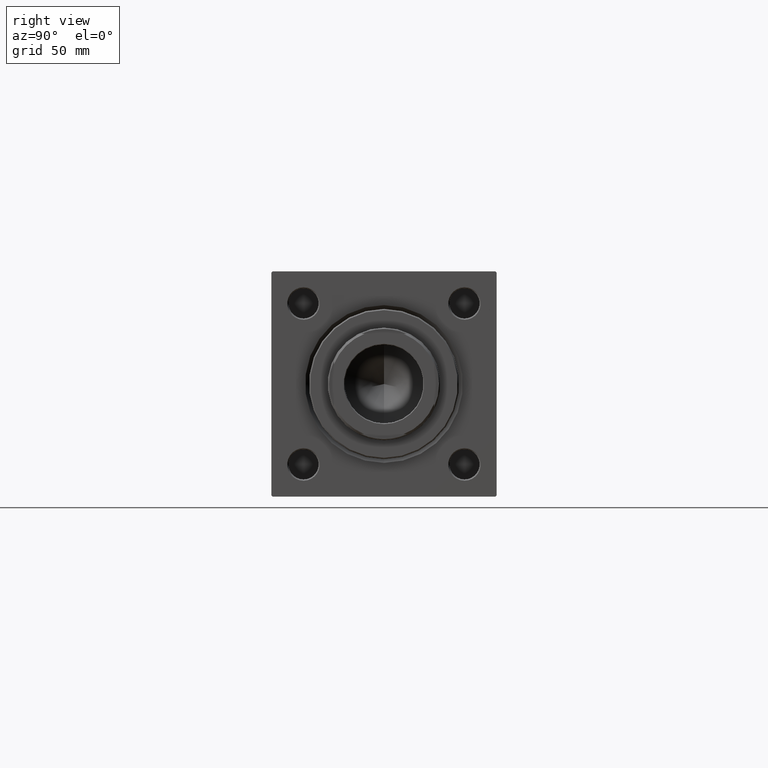
[diagram: clean part render]
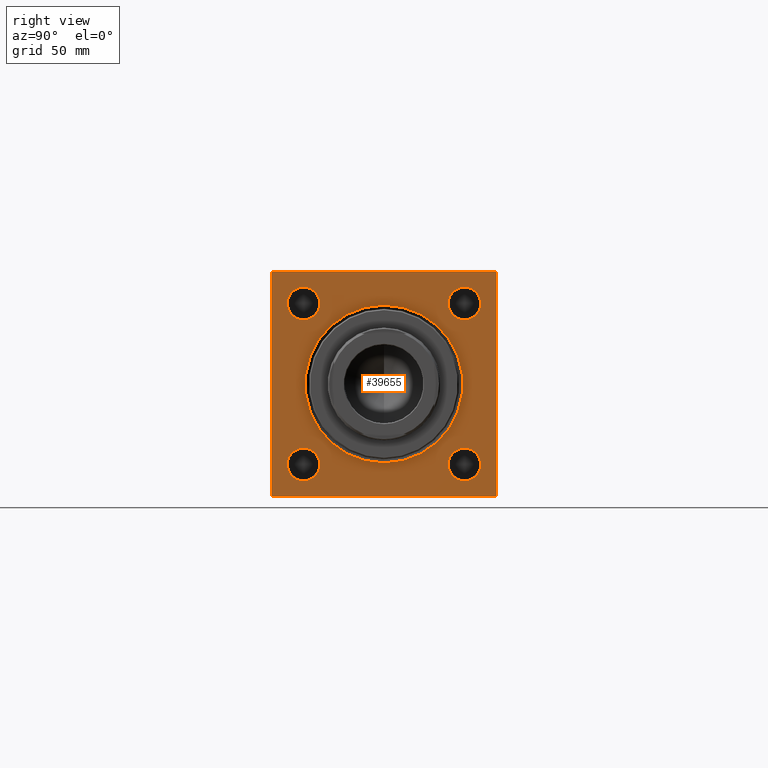
[diagram: same view with one face highlighted and labeled with its STEP entity id]
A machine part, right view. The second image highlights one B-rep face of the part: STEP entity #39655.
In plain terms, the highlighted planar face has unit normal (-1, 0, 0).
Its self-contained STEP definition (entity closure, byte-faithful):
#113 = ORIENTED_EDGE ( 'NONE', *, *, #33554, .F. ) ;
#511 = AXIS2_PLACEMENT_3D ( 'NONE', #24384, #16039, #831 ) ;
#660 = CIRCLE ( 'NONE', #20085, 31.49999999999997158 ) ;
#700 = CIRCLE ( 'NONE', #42023, 31.49999999999997158 ) ;
#831 = DIRECTION ( 'NONE',  ( 0.000000000000000000, 0.000000000000000000, 1.000000000000000000 ) ) ;
#940 = CARTESIAN_POINT ( 'NONE',  ( 215.0000000000000000, 45.00000000000000000, 44.50000000000001421 ) ) ;
#1175 = VECTOR ( 'NONE', #43273, 1000.000000000000114 ) ;
#1537 = EDGE_CURVE ( 'NONE', #48639, #20991, #700, .T. ) ;
#1698 = AXIS2_PLACEMENT_3D ( 'NONE', #31020, #26719, #31267 ) ;
#1708 = DIRECTION ( 'NONE',  ( 0.000000000000000000, 0.000000000000000000, 1.000000000000000000 ) ) ;
#2242 = LINE ( 'NONE', #44833, #21068 ) ;
#2457 = EDGE_LOOP ( 'NONE', ( #25732, #44193 ) ) ;
#2843 = CARTESIAN_POINT ( 'NONE',  ( 215.0000000000000000, 0.000000000000000000, 0.000000000000000000 ) ) ;
#3144 = ORIENTED_EDGE ( 'NONE', *, *, #8121, .T. ) ;
#3922 = CIRCLE ( 'NONE', #21700, 6.499999999999977796 ) ;
#4381 = CARTESIAN_POINT ( 'NONE',  ( 215.0000000000000000, -44.49999999999997158, 45.00000000000000000 ) ) ;
#5157 = EDGE_CURVE ( 'NONE', #26328, #27036, #2242, .T. ) ;
#5237 = DIRECTION ( 'NONE',  ( 0.000000000000000000, 0.000000000000000000, -1.000000000000000000 ) ) ;
#5719 = LINE ( 'NONE', #32330, #31959 ) ;
#6133 = ORIENTED_EDGE ( 'NONE', *, *, #20011, .T. ) ;
#6137 = VERTEX_POINT ( 'NONE', #21752 ) ;
#6217 = CARTESIAN_POINT ( 'NONE',  ( 215.0000000000000000, 0.000000000000000000, -31.49999999999997158 ) ) ;
#6298 = DIRECTION ( 'NONE',  ( 0.000000000000000000, 0.000000000000000000, -1.000000000000000000 ) ) ;
#6393 = FACE_BOUND ( 'NONE', #2457, .T. ) ;
#6645 = CARTESIAN_POINT ( 'NONE',  ( 215.0000000000000000, 0.000000000000000000, 0.000000000000000000 ) ) ;
#6890 = EDGE_CURVE ( 'NONE', #7713, #28802, #9780, .T. ) ;
#7222 = AXIS2_PLACEMENT_3D ( 'NONE', #46232, #7705, #23153 ) ;
#7376 = AXIS2_PLACEMENT_3D ( 'NONE', #13602, #36440, #1708 ) ;
#7485 = LINE ( 'NONE', #8663, #31298 ) ;
#7560 = ORIENTED_EDGE ( 'NONE', *, *, #34576, .T. ) ;
#7586 = ORIENTED_EDGE ( 'NONE', *, *, #32189, .T. ) ;
#7705 = DIRECTION ( 'NONE',  ( -1.000000000000000000, 0.000000000000000000, -0.000000000000000000 ) ) ;
#7713 = VERTEX_POINT ( 'NONE', #11461 ) ;
#8003 = ORIENTED_EDGE ( 'NONE', *, *, #5157, .F. ) ;
#8121 = EDGE_CURVE ( 'NONE', #48667, #33597, #27709, .T. ) ;
#8231 = DIRECTION ( 'NONE',  ( -1.000000000000000000, 0.000000000000000000, -0.000000000000000000 ) ) ;
#8296 = VERTEX_POINT ( 'NONE', #33252 ) ;
#8663 = CARTESIAN_POINT ( 'NONE',  ( 215.0000000000000000, 45.00000000000000000, -44.49999999999998579 ) ) ;
#8726 = DIRECTION ( 'NONE',  ( -1.000000000000000000, 0.000000000000000000, -0.000000000000000000 ) ) ;
#8937 = CARTESIAN_POINT ( 'NONE',  ( 215.0000000000000000, 32.14999999999999147, 25.65000000000001990 ) ) ;
#9174 = LINE ( 'NONE', #12486, #17674 ) ;
#9780 = CIRCLE ( 'NONE', #7376, 6.499999999999977796 ) ;
#9952 = FACE_BOUND ( 'NONE', #44558, .T. ) ;
#10253 = ORIENTED_EDGE ( 'NONE', *, *, #32484, .T. ) ;
#11149 = CARTESIAN_POINT ( 'NONE',  ( 215.0000000000000000, -45.00000000000000000, -44.49999999999997158 ) ) ;
#11461 = CARTESIAN_POINT ( 'NONE',  ( 215.0000000000000000, -32.14999999999999858, 25.65000000000001990 ) ) ;
#11852 = CARTESIAN_POINT ( 'NONE',  ( 215.0000000000000000, -45.00000000000000000, 45.00000000000000000 ) ) ;
#12027 = CARTESIAN_POINT ( 'NONE',  ( 215.0000000000000000, 45.00000000000000000, 45.00000000000001421 ) ) ;
#12368 = EDGE_CURVE ( 'NONE', #24502, #6137, #34937, .T. ) ;
#12486 = CARTESIAN_POINT ( 'NONE',  ( 215.0000000000000000, 45.00000000000000000, -44.99999999999998579 ) ) ;
#12520 = DIRECTION ( 'NONE',  ( 0.000000000000000000, -1.000000000000000000, -1.541976423090495387E-16 ) ) ;
#12692 = EDGE_LOOP ( 'NONE', ( #7560, #46985 ) ) ;
#13099 = AXIS2_PLACEMENT_3D ( 'NONE', #20126, #8726, #35110 ) ;
#13167 = DIRECTION ( 'NONE',  ( 0.000000000000000000, 0.000000000000000000, 1.000000000000000000 ) ) ;
#13174 = VERTEX_POINT ( 'NONE', #35844 ) ;
#13562 = CARTESIAN_POINT ( 'NONE',  ( 215.0000000000000000, 44.50000000000000000, 45.00000000000001421 ) ) ;
#13602 = CARTESIAN_POINT ( 'NONE',  ( 215.0000000000000000, -32.14999999999999858, 32.14999999999999858 ) ) ;
#14187 = CARTESIAN_POINT ( 'NONE',  ( 215.0000000000000000, 32.14999999999999147, -38.64999999999997726 ) ) ;
#15496 = AXIS2_PLACEMENT_3D ( 'NONE', #32430, #36247, #13167 ) ;
#16039 = DIRECTION ( 'NONE',  ( -1.000000000000000000, 0.000000000000000000, -0.000000000000000000 ) ) ;
#16775 = DIRECTION ( 'NONE',  ( 0.000000000000000000, -1.000000000000000000, -1.541976423090495387E-16 ) ) ;
#17674 = VECTOR ( 'NONE', #16775, 1000.000000000000000 ) ;
#17954 = VERTEX_POINT ( 'NONE', #11149 ) ;
#18105 = DIRECTION ( 'NONE',  ( 0.000000000000000000, 0.000000000000000000, 1.000000000000000000 ) ) ;
#18176 = VECTOR ( 'NONE', #5237, 1000.000000000000000 ) ;
#18180 = EDGE_CURVE ( 'NONE', #26328, #48667, #42775, .T. ) ;
#18276 = DIRECTION ( 'NONE',  ( 0.000000000000000000, 0.000000000000000000, 1.000000000000000000 ) ) ;
#19105 = EDGE_CURVE ( 'NONE', #33597, #13174, #5719, .T. ) ;
#19827 = VECTOR ( 'NONE', #32279, 1000.000000000000114 ) ;
#20011 = EDGE_CURVE ( 'NONE', #13174, #17954, #39461, .T. ) ;
#20059 = VERTEX_POINT ( 'NONE', #39710 ) ;
#20085 = AXIS2_PLACEMENT_3D ( 'NONE', #25461, #22176, #18105 ) ;
#20126 = CARTESIAN_POINT ( 'NONE',  ( 215.0000000000000000, 32.14999999999999147, -32.14999999999999858 ) ) ;
#20524 = EDGE_CURVE ( 'NONE', #17954, #20059, #44700, .T. ) ;
#20991 = VERTEX_POINT ( 'NONE', #22499 ) ;
#21068 = VECTOR ( 'NONE', #6298, 1000.000000000000000 ) ;
#21117 = CARTESIAN_POINT ( 'NONE',  ( 215.0000000000000000, -44.50000000000000000, -45.00000000000000000 ) ) ;
#21700 = AXIS2_PLACEMENT_3D ( 'NONE', #46756, #8231, #39405 ) ;
#21752 = CARTESIAN_POINT ( 'NONE',  ( 215.0000000000000000, -32.14999999999999858, -38.64999999999997726 ) ) ;
#21805 = AXIS2_PLACEMENT_3D ( 'NONE', #2843, #30213, #29439 ) ;
#21846 = FACE_BOUND ( 'NONE', #37782, .T. ) ;
#22170 = CARTESIAN_POINT ( 'NONE',  ( 215.0000000000000000, -32.14999999999999858, 38.64999999999997726 ) ) ;
#22176 = DIRECTION ( 'NONE',  ( -1.000000000000000000, 0.000000000000000000, -0.000000000000000000 ) ) ;
#22499 = CARTESIAN_POINT ( 'NONE',  ( 215.0000000000000000, 3.857637417314158745E-15, 31.49999999999997158 ) ) ;
#22868 = ORIENTED_EDGE ( 'NONE', *, *, #18180, .T. ) ;
#22933 = DIRECTION ( 'NONE',  ( -0.000000000000000000, 0.7071067811865474617, 0.7071067811865474617 ) ) ;
#23153 = DIRECTION ( 'NONE',  ( 0.000000000000000000, 0.000000000000000000, 1.000000000000000000 ) ) ;
#23478 = CARTESIAN_POINT ( 'NONE',  ( 215.0000000000000000, 44.50000000000000000, 45.00000000000001421 ) ) ;
#23597 = VECTOR ( 'NONE', #12520, 1000.000000000000000 ) ;
#24200 = CIRCLE ( 'NONE', #7222, 6.499999999999977796 ) ;
#24384 = CARTESIAN_POINT ( 'NONE',  ( 215.0000000000000000, 32.14999999999999147, -32.14999999999999858 ) ) ;
#24502 = VERTEX_POINT ( 'NONE', #35639 ) ;
#24691 = EDGE_CURVE ( 'NONE', #8296, #26694, #37740, .T. ) ;
#24719 = DIRECTION ( 'NONE',  ( -0.000000000000000000, -0.7071067811865474617, -0.7071067811865474617 ) ) ;
#25395 = FACE_OUTER_BOUND ( 'NONE', #31669, .T. ) ;
#25461 = CARTESIAN_POINT ( 'NONE',  ( 215.0000000000000000, 0.000000000000000000, 0.000000000000000000 ) ) ;
#25732 = ORIENTED_EDGE ( 'NONE', *, *, #44794, .T. ) ;
#25980 = VERTEX_POINT ( 'NONE', #33682 ) ;
#26156 = VERTEX_POINT ( 'NONE', #49633 ) ;
#26328 = VERTEX_POINT ( 'NONE', #940 ) ;
#26694 = VERTEX_POINT ( 'NONE', #14187 ) ;
#26719 = DIRECTION ( 'NONE',  ( -1.000000000000000000, 0.000000000000000000, -0.000000000000000000 ) ) ;
#27036 = VERTEX_POINT ( 'NONE', #35988 ) ;
#27709 = LINE ( 'NONE', #12027, #23597 ) ;
#28802 = VERTEX_POINT ( 'NONE', #22170 ) ;
#28913 = EDGE_CURVE ( 'NONE', #26156, #27036, #7485, .T. ) ;
#28967 = CIRCLE ( 'NONE', #33837, 6.499999999999977796 ) ;
#29194 = FACE_BOUND ( 'NONE', #12692, .T. ) ;
#29439 = DIRECTION ( 'NONE',  ( -0.000000000000000000, 0.000000000000000000, 1.000000000000000000 ) ) ;
#30007 = ORIENTED_EDGE ( 'NONE', *, *, #32314, .T. ) ;
#30213 = DIRECTION ( 'NONE',  ( -1.000000000000000000, 0.000000000000000000, -0.000000000000000000 ) ) ;
#30466 = ORIENTED_EDGE ( 'NONE', *, *, #20524, .T. ) ;
#31020 = CARTESIAN_POINT ( 'NONE',  ( 215.0000000000000000, -32.14999999999999858, 32.14999999999999858 ) ) ;
#31267 = DIRECTION ( 'NONE',  ( 0.000000000000000000, 0.000000000000000000, 1.000000000000000000 ) ) ;
#31298 = VECTOR ( 'NONE', #22933, 1000.000000000000114 ) ;
#31669 = EDGE_LOOP ( 'NONE', ( #6133, #30466, #113, #32461, #8003, #22868, #3144, #32856 ) ) ;
#31959 = VECTOR ( 'NONE', #24719, 1000.000000000000114 ) ;
#32189 = EDGE_CURVE ( 'NONE', #20991, #48639, #660, .T. ) ;
#32279 = DIRECTION ( 'NONE',  ( 0.000000000000000000, 0.7071067811865474617, -0.7071067811865474617 ) ) ;
#32314 = EDGE_CURVE ( 'NONE', #45347, #25980, #3922, .T. ) ;
#32330 = CARTESIAN_POINT ( 'NONE',  ( 215.0000000000000000, -45.00000000000000000, 44.50000000000000000 ) ) ;
#32430 = CARTESIAN_POINT ( 'NONE',  ( 215.0000000000000000, -32.14999999999999858, -32.14999999999999858 ) ) ;
#32461 = ORIENTED_EDGE ( 'NONE', *, *, #28913, .T. ) ;
#32484 = EDGE_CURVE ( 'NONE', #25980, #45347, #28967, .T. ) ;
#32856 = ORIENTED_EDGE ( 'NONE', *, *, #19105, .T. ) ;
#33252 = CARTESIAN_POINT ( 'NONE',  ( 215.0000000000000000, 32.14999999999999147, -25.65000000000001990 ) ) ;
#33554 = EDGE_CURVE ( 'NONE', #26156, #20059, #9174, .T. ) ;
#33597 = VERTEX_POINT ( 'NONE', #4381 ) ;
#33682 = CARTESIAN_POINT ( 'NONE',  ( 215.0000000000000000, 32.14999999999999147, 38.64999999999997726 ) ) ;
#33837 = AXIS2_PLACEMENT_3D ( 'NONE', #49999, #42666, #41923 ) ;
#34576 = EDGE_CURVE ( 'NONE', #6137, #24502, #24200, .T. ) ;
#34937 = CIRCLE ( 'NONE', #15496, 6.499999999999977796 ) ;
#34961 = CIRCLE ( 'NONE', #13099, 6.499999999999977796 ) ;
#35103 = ORIENTED_EDGE ( 'NONE', *, *, #1537, .T. ) ;
#35110 = DIRECTION ( 'NONE',  ( 0.000000000000000000, 0.000000000000000000, 1.000000000000000000 ) ) ;
#35639 = CARTESIAN_POINT ( 'NONE',  ( 215.0000000000000000, -32.14999999999999858, -25.65000000000001990 ) ) ;
#35844 = CARTESIAN_POINT ( 'NONE',  ( 215.0000000000000000, -45.00000000000000000, 44.50000000000000000 ) ) ;
#35988 = CARTESIAN_POINT ( 'NONE',  ( 215.0000000000000000, 45.00000000000000000, -44.49999999999995737 ) ) ;
#36247 = DIRECTION ( 'NONE',  ( -1.000000000000000000, 0.000000000000000000, -0.000000000000000000 ) ) ;
#36440 = DIRECTION ( 'NONE',  ( -1.000000000000000000, 0.000000000000000000, -0.000000000000000000 ) ) ;
#37740 = CIRCLE ( 'NONE', #511, 6.499999999999977796 ) ;
#37782 = EDGE_LOOP ( 'NONE', ( #35103, #7586 ) ) ;
#39405 = DIRECTION ( 'NONE',  ( 0.000000000000000000, 0.000000000000000000, 1.000000000000000000 ) ) ;
#39461 = LINE ( 'NONE', #11852, #18176 ) ;
#39655 = ADVANCED_FACE ( 'NONE', ( #9952, #49482, #29194, #6393, #21846, #25395 ), #41648, .F. ) ;
#39710 = CARTESIAN_POINT ( 'NONE',  ( 215.0000000000000000, -44.49999999999997158, -45.00000000000000000 ) ) ;
#41648 = PLANE ( 'NONE',  #21805 ) ;
#41923 = DIRECTION ( 'NONE',  ( 0.000000000000000000, 0.000000000000000000, 1.000000000000000000 ) ) ;
#42023 = AXIS2_PLACEMENT_3D ( 'NONE', #6645, #48709, #18276 ) ;
#42666 = DIRECTION ( 'NONE',  ( -1.000000000000000000, 0.000000000000000000, -0.000000000000000000 ) ) ;
#42775 = LINE ( 'NONE', #23478, #1175 ) ;
#42805 = EDGE_CURVE ( 'NONE', #28802, #7713, #43796, .T. ) ;
#43273 = DIRECTION ( 'NONE',  ( 0.000000000000000000, -0.7071067811865474617, 0.7071067811865474617 ) ) ;
#43796 = CIRCLE ( 'NONE', #1698, 6.499999999999977796 ) ;
#44193 = ORIENTED_EDGE ( 'NONE', *, *, #24691, .T. ) ;
#44558 = EDGE_LOOP ( 'NONE', ( #30007, #10253 ) ) ;
#44629 = ORIENTED_EDGE ( 'NONE', *, *, #42805, .T. ) ;
#44700 = LINE ( 'NONE', #21117, #19827 ) ;
#44794 = EDGE_CURVE ( 'NONE', #26694, #8296, #34961, .T. ) ;
#44833 = CARTESIAN_POINT ( 'NONE',  ( 215.0000000000000000, 45.00000000000000000, 45.00000000000001421 ) ) ;
#45089 = EDGE_LOOP ( 'NONE', ( #47839, #44629 ) ) ;
#45347 = VERTEX_POINT ( 'NONE', #8937 ) ;
#46232 = CARTESIAN_POINT ( 'NONE',  ( 215.0000000000000000, -32.14999999999999858, -32.14999999999999858 ) ) ;
#46756 = CARTESIAN_POINT ( 'NONE',  ( 215.0000000000000000, 32.14999999999999147, 32.14999999999999858 ) ) ;
#46985 = ORIENTED_EDGE ( 'NONE', *, *, #12368, .T. ) ;
#47839 = ORIENTED_EDGE ( 'NONE', *, *, #6890, .T. ) ;
#48639 = VERTEX_POINT ( 'NONE', #6217 ) ;
#48667 = VERTEX_POINT ( 'NONE', #13562 ) ;
#48709 = DIRECTION ( 'NONE',  ( -1.000000000000000000, 0.000000000000000000, -0.000000000000000000 ) ) ;
#49482 = FACE_BOUND ( 'NONE', #45089, .T. ) ;
#49633 = CARTESIAN_POINT ( 'NONE',  ( 215.0000000000000000, 44.50000000000000000, -44.99999999999998579 ) ) ;
#49999 = CARTESIAN_POINT ( 'NONE',  ( 215.0000000000000000, 32.14999999999999147, 32.14999999999999858 ) ) ;